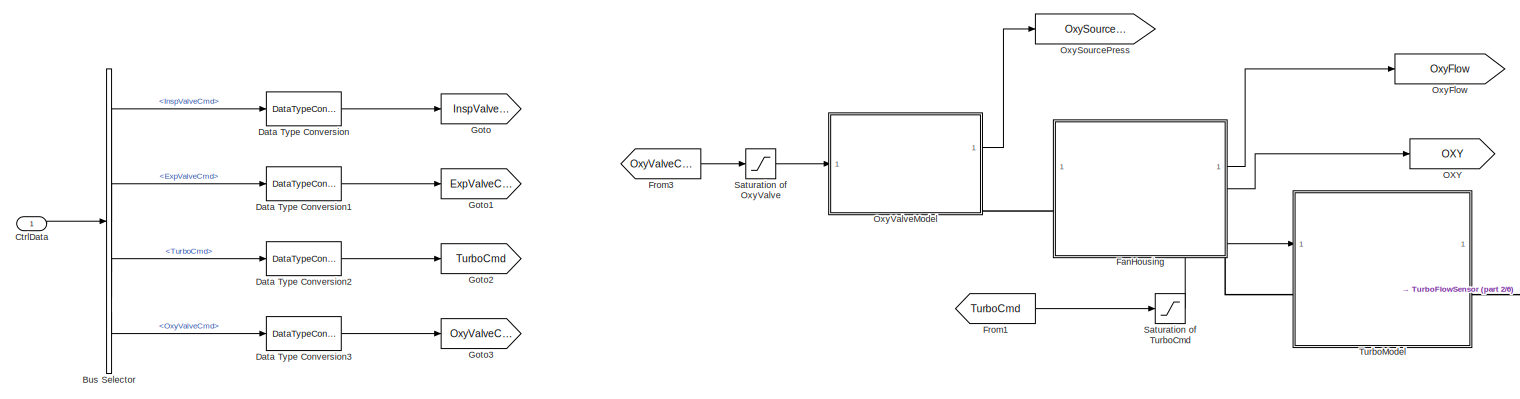
[diagram: root canvas - part 1/6, top left region]
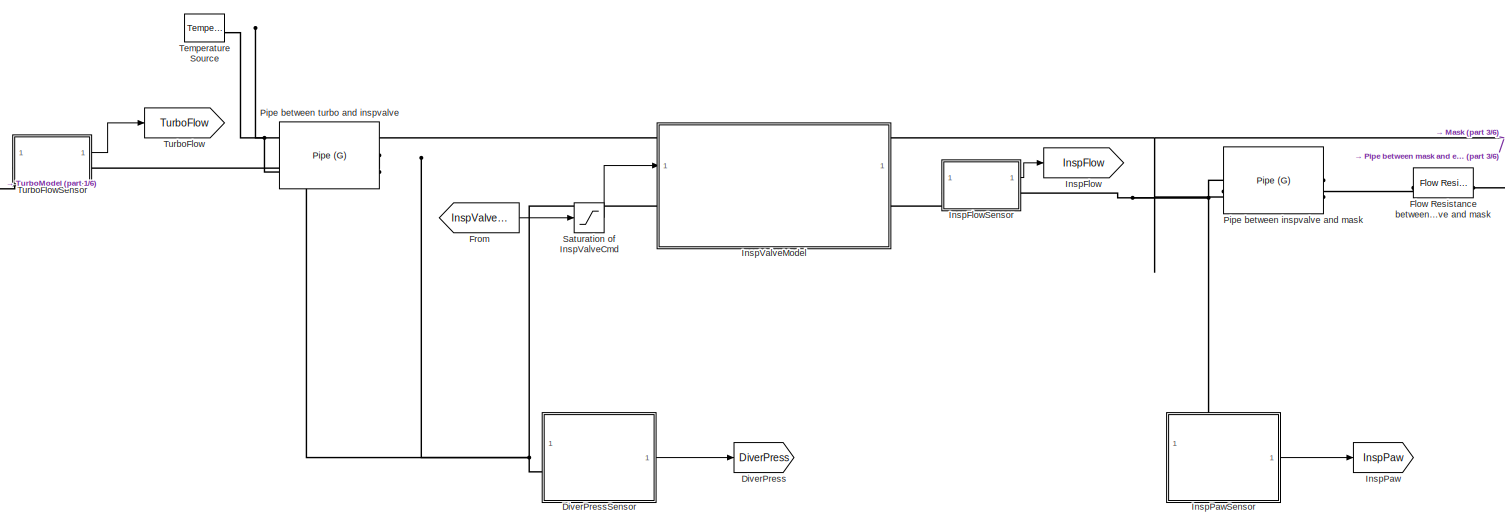
[diagram: root canvas - part 2/6, top center region]
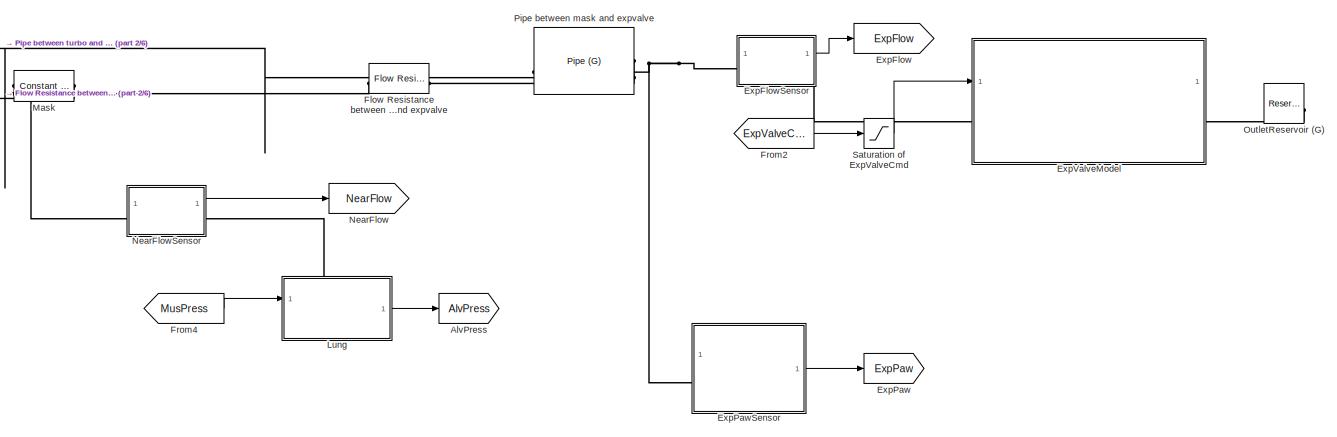
[diagram: root canvas - part 3/6, top right region]
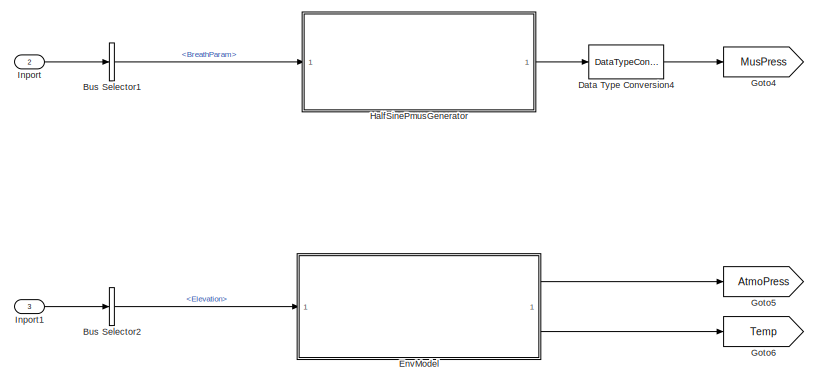
[diagram: root canvas - part 4/6, middle left region]
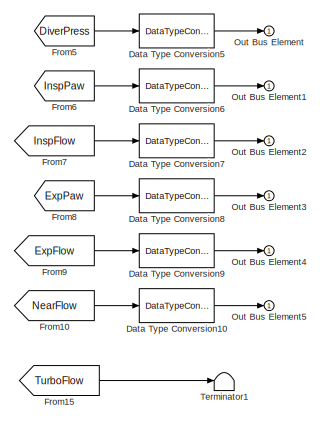
[diagram: root canvas - part 5/6, bottom right region]
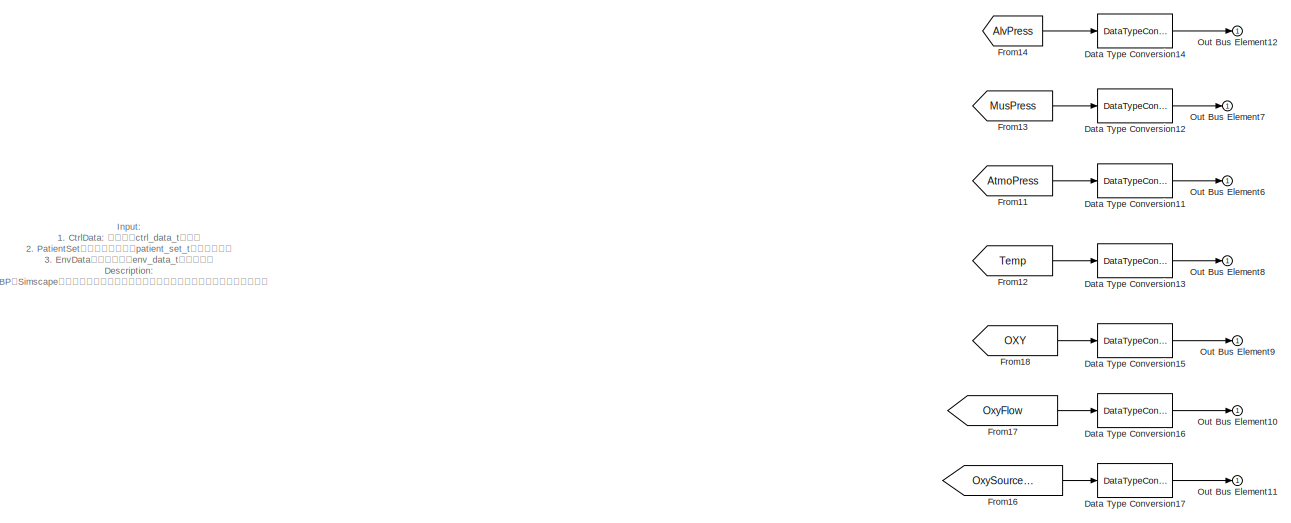
[diagram: root canvas - part 6/6, bottom center region]
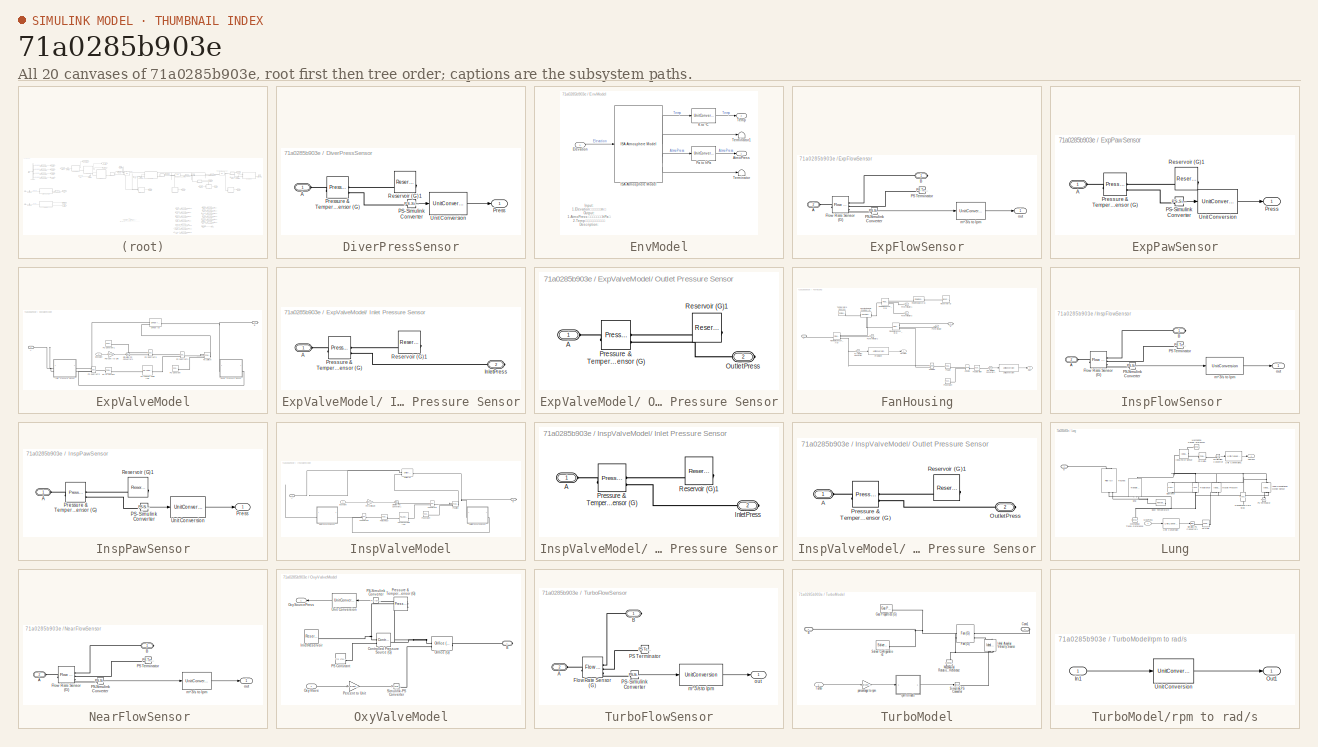
[diagram: thumbnail index - all 20 canvases of the model, root first then tree order]
MODEL slx_71a0285b903e
KIND model
CONFIG AbsTol = auto
CONFIG EnableMultiTasking = off
CONFIG FixedStep = auto
CONFIG MaxStep = auto
CONFIG MinStep = auto
CONFIG RelTol = 1e-3
CONFIG SampleTimeConstraint = Unconstrained
CONFIG SolverName = VariableStepAuto
CONFIG StartTime = 0.0
CONFIG StopTime = 10.0
WORKSPACE source: mxarray member
WORKSPACE Air_density = 1.29
WORKSPACE Body_Temperature = 37
WORKSPACE CtrlData_Max = 100
WORKSPACE CtrlData_Min = 0
WORKSPACE Detpress_to_Vavle: object (value not decoded)
WORKSPACE E_respriatory = 10
WORKSPACE ExpValve: object (value not decoded)
WORKSPACE FRC = 2
WORKSPACE Fan: object (value not decoded)
WORKSPACE FanHousing: object (value not decoded)
WORKSPACE Flow_Resistance_1: object (value not decoded)
WORKSPACE Flow_Resistance_2: object (value not decoded)
WORKSPACE Hard_Stop: Lower_bound (value not decoded)
WORKSPACE InspValve: object (value not decoded)
WORKSPACE L_to_m3 = 0.001
WORKSPACE Mask: object (value not decoded)
WORKSPACE OxyValve: object (value not decoded)
WORKSPACE OxygenSensor: object (value not decoded)
WORKSPACE Pa_to_cmH2O = 0.0101974428892
WORKSPACE Percent_to_Unit = 0.01
WORKSPACE Pipe_1: object (value not decoded)
WORKSPACE Pipe_2: object (value not decoded)
WORKSPACE Pipe_3: object (value not decoded)
WORKSPACE R_respiratory = 2
WORKSPACE Reservoir: Cross_area (value not decoded)
WORKSPACE Trachea: object (value not decoded)
WORKSPACE Volume_Max = 0.9
WORKSPACE cmH2O_to_Pa = 98.0638
WORKSPACE cmH2O_to_kPa = 0.0981
WORKSPACE lung: object (value not decoded)
WORKSPACE percentage_to_rpm = 600
BLOCK [Goto] AlvPress
  GotoTag = AlvPress
BLOCK [BusSelector] Bus Selector
  OutputSignals = InspValveCmd,ExpValveCmd,TurboCmd,OxyValveCmd
BLOCK [BusSelector] Bus Selector1
  OutputSignals = BreathParam
BLOCK [BusSelector] Bus Selector2
  OutputSignals = Elevation
BLOCK [Inport] CtrlData
  OutDataTypeStr = Bus: ctrl_data_t
BLOCK [DataTypeConversion] Data Type Conversion
  OutDataTypeStr = double
  RndMeth = Floor
  SaturateOnIntegerOverflow = off
BLOCK [DataTypeConversion] Data Type Conversion1
  OutDataTypeStr = double
  RndMeth = Floor
  SaturateOnIntegerOverflow = off
BLOCK [DataTypeConversion] Data Type Conversion10
  OutDataTypeStr = single
  RndMeth = Floor
  SaturateOnIntegerOverflow = off
BLOCK [DataTypeConversion] Data Type Conversion11
  OutDataTypeStr = single
  RndMeth = Floor
  SaturateOnIntegerOverflow = off
BLOCK [DataTypeConversion] Data Type Conversion12
  OutDataTypeStr = single
  RndMeth = Floor
  SaturateOnIntegerOverflow = off
BLOCK [DataTypeConversion] Data Type Conversion13
  OutDataTypeStr = single
  RndMeth = Floor
  SaturateOnIntegerOverflow = off
BLOCK [DataTypeConversion] Data Type Conversion14
  OutDataTypeStr = single
  RndMeth = Floor
  SaturateOnIntegerOverflow = off
BLOCK [DataTypeConversion] Data Type Conversion15
  OutDataTypeStr = single
  RndMeth = Floor
  SaturateOnIntegerOverflow = off
BLOCK [DataTypeConversion] Data Type Conversion16
  OutDataTypeStr = single
  RndMeth = Floor
  SaturateOnIntegerOverflow = off
BLOCK [DataTypeConversion] Data Type Conversion17
  OutDataTypeStr = single
  RndMeth = Floor
  SaturateOnIntegerOverflow = off
BLOCK [DataTypeConversion] Data Type Conversion2
  OutDataTypeStr = double
  RndMeth = Floor
  SaturateOnIntegerOverflow = off
BLOCK [DataTypeConversion] Data Type Conversion3
  OutDataTypeStr = double
  RndMeth = Floor
  SaturateOnIntegerOverflow = off
BLOCK [DataTypeConversion] Data Type Conversion4
  OutDataTypeStr = double
  RndMeth = Floor
  SaturateOnIntegerOverflow = off
BLOCK [DataTypeConversion] Data Type Conversion5
  OutDataTypeStr = single
  RndMeth = Floor
  SaturateOnIntegerOverflow = off
BLOCK [DataTypeConversion] Data Type Conversion6
  OutDataTypeStr = single
  RndMeth = Floor
  SaturateOnIntegerOverflow = off
BLOCK [DataTypeConversion] Data Type Conversion7
  OutDataTypeStr = single
  RndMeth = Floor
  SaturateOnIntegerOverflow = off
BLOCK [DataTypeConversion] Data Type Conversion8
  OutDataTypeStr = single
  RndMeth = Floor
  SaturateOnIntegerOverflow = off
BLOCK [DataTypeConversion] Data Type Conversion9
  OutDataTypeStr = single
  RndMeth = Floor
  SaturateOnIntegerOverflow = off
BLOCK [Goto] DiverPress
  GotoTag = DiverPress
BLOCK [SubSystem] DiverPressSensor
BLOCK [PMIOPort] DiverPressSensor/A
  Side = Left
BLOCK [Reference] DiverPressSensor/PS-Simulink Converter  REF=nesl_utility/PS-Simulink
Converter
  SourceBlock = nesl_utility/PS-Simulink\nConverter
  SourceType = PS-Simulink\nConverter
BLOCK [Outport] DiverPressSensor/Press
  Unit = hPa
BLOCK [Reference] DiverPressSensor/Pressure & Temperature Sensor (G)  REF=fl_lib/Gas/Sensors/Pressure &
Temperature Sensor
(G)
  SourceBlock = fl_lib/Gas/Sensors/Pressure &\nTemperature Sensor\n(G)
  SourceType = Pressure &\nTemperature Sensor\n(G)
BLOCK [Reference] DiverPressSensor/Reservoir (G)1  REF=fl_lib/Gas/Elements/Reservoir (G)
  NameLocation = top
  SourceBlock = fl_lib/Gas/Elements/Reservoir (G)
  SourceType = Reservoir (G)
BLOCK [UnitConversion] DiverPressSensor/Unit Conversion
BLOCK [SubSystem] EnvModel
  AttributesFormatString = %<Description>
  Description = 环境模型
BLOCK [Outport] EnvModel/AtmoPress
  OutDataTypeStr = single
  Unit = hPa
BLOCK [Inport] EnvModel/Elevation
  OutDataTypeStr = int16
  Unit = m
BLOCK [Reference] EnvModel/ISA Atmosphere Model  REF=aerolibatmos2/ISA Atmosphere Model
  SourceBlock = aerolibatmos2/ISA Atmosphere Model
  SourceType = International Standard Atmosphere Model
BLOCK [UnitConversion] EnvModel/K to °C
  OutputType = Inherit: Inherit via back propagation
BLOCK [UnitConversion] EnvModel/Pa to hPa
  OutputType = Inherit: Inherit via back propagation
BLOCK [Outport] EnvModel/Temp
  OutDataTypeStr = single
  Port = 2
  Unit = °C
BLOCK [Terminator] EnvModel/Terminator
BLOCK [Terminator] EnvModel/Terminator1
BLOCK [Goto] ExpFlow
  GotoTag = ExpFlow
BLOCK [SubSystem] ExpFlowSensor
BLOCK [PMIOPort] ExpFlowSensor/A
  Port = 2
  Side = Left
BLOCK [PMIOPort] ExpFlowSensor/B
  Side = Right
BLOCK [Reference] ExpFlowSensor/Flow Rate Sensor (G)  REF=fl_lib/Gas/Sensors/Flow Rate Sensor (G)
  SourceBlock = fl_lib/Gas/Sensors/Flow Rate Sensor (G)
  SourceType = Flow Rate Sensor (G)
BLOCK [Reference] ExpFlowSensor/PS Terminator  REF=fl_lib/Physical Signals/Sinks/PS Terminator
  SourceBlock = fl_lib/Physical Signals/Sinks/PS Terminator
  SourceType = PS Terminator
BLOCK [Reference] ExpFlowSensor/PS-Simulink Converter  REF=nesl_utility/PS-Simulink
Converter
  SourceBlock = nesl_utility/PS-Simulink\nConverter
  SourceType = PS-Simulink\nConverter
BLOCK [UnitConversion] ExpFlowSensor/m^3//s to lpm
BLOCK [Outport] ExpFlowSensor/out
  Unit = lpm
BLOCK [Goto] ExpPaw
  GotoTag = ExpPaw
BLOCK [SubSystem] ExpPawSensor
BLOCK [PMIOPort] ExpPawSensor/A
  Side = Left
BLOCK [Reference] ExpPawSensor/PS-Simulink Converter  REF=nesl_utility/PS-Simulink
Converter
  SourceBlock = nesl_utility/PS-Simulink\nConverter
  SourceType = PS-Simulink\nConverter
BLOCK [Outport] ExpPawSensor/Press
  Unit = hPa
BLOCK [Reference] ExpPawSensor/Pressure & Temperature Sensor (G)  REF=fl_lib/Gas/Sensors/Pressure &
Temperature Sensor
(G)
  SourceBlock = fl_lib/Gas/Sensors/Pressure &\nTemperature Sensor\n(G)
  SourceType = Pressure &\nTemperature Sensor\n(G)
BLOCK [Reference] ExpPawSensor/Reservoir (G)1  REF=fl_lib/Gas/Elements/Reservoir (G)
  NameLocation = top
  SourceBlock = fl_lib/Gas/Elements/Reservoir (G)
  SourceType = Reservoir (G)
BLOCK [UnitConversion] ExpPawSensor/Unit Conversion
BLOCK [SubSystem] ExpValveModel
  PortSchema = {"entries":[{"content":{"sides":[{"content":{"connectorIds":["LConn1","In1"]},"type":"ConnectorPlacement.EquallySpacedRectSide","uuid":"c1491169-4dad-48f4-8472-367eebf90c5f"},{"content":{"connectorIds":["RConn1"],"side":"RIGHT"},"type":"ConnectorPlacement.EquallySpacedRectSide","uuid":"0545f3b4-3593-4e73-91f2-3a40a520eda3"},{"content":{"side":"TOP"},"type":"ConnectorPlacement.EquallySpacedRectSide...<+233ch>  <repeated x3 — deduplicated; at blocks: ExpValveModel, InspValveModel, TurboModel>
BLOCK [SubSystem] ExpValveModel/ Inlet Pressure Sensor
BLOCK [PMIOPort] ExpValveModel/ Inlet Pressure Sensor/A
  Side = Left
BLOCK [PMIOPort] ExpValveModel/ Inlet Pressure Sensor/InletPress
  Port = 2
  Side = Right
BLOCK [Reference] ExpValveModel/ Inlet Pressure Sensor/Pressure & Temperature Sensor (G)  REF=fl_lib/Gas/Sensors/Pressure &
Temperature Sensor
(G)
  SourceBlock = fl_lib/Gas/Sensors/Pressure &\nTemperature Sensor\n(G)
  SourceType = Pressure &\nTemperature Sensor\n(G)
BLOCK [Reference] ExpValveModel/ Inlet Pressure Sensor/Reservoir (G)1  REF=fl_lib/Gas/Elements/Reservoir (G)
  NameLocation = top
  SourceBlock = fl_lib/Gas/Elements/Reservoir (G)
  SourceType = Reservoir (G)
BLOCK [SubSystem] ExpValveModel/ Outlet Pressure Sensor
BLOCK [PMIOPort] ExpValveModel/ Outlet Pressure Sensor/A
  Side = Left
BLOCK [PMIOPort] ExpValveModel/ Outlet Pressure Sensor/OutletPress
  Port = 2
  Side = Right
BLOCK [Reference] ExpValveModel/ Outlet Pressure Sensor/Pressure & Temperature Sensor (G)  REF=fl_lib/Gas/Sensors/Pressure &
Temperature Sensor
(G)
  SourceBlock = fl_lib/Gas/Sensors/Pressure &\nTemperature Sensor\n(G)
  SourceType = Pressure &\nTemperature Sensor\n(G)
BLOCK [Reference] ExpValveModel/ Outlet Pressure Sensor/Reservoir (G)1  REF=fl_lib/Gas/Elements/Reservoir (G)
  NameLocation = top
  SourceBlock = fl_lib/Gas/Elements/Reservoir (G)
  SourceType = Reservoir (G)
BLOCK [PMIOPort] ExpValveModel/A
  Side = Left
BLOCK [PMIOPort] ExpValveModel/B
  NameLocation = top
  Port = 2
  Side = Right
BLOCK [Inport] ExpValveModel/ExpValve
BLOCK [Reference] ExpValveModel/Orifice (G)  REF=SimscapeFluids_lib/Gas/Valves & Orifices/Orifice (G)
  SourceBlock = SimscapeFluids_lib/Gas/Valves & Orifices/Orifice (G)
  SourceType = Orifice (G)
BLOCK [Reference] ExpValveModel/PS Constant  REF=fl_lib/Physical Signals/Sources/PS Constant
  SourceBlock = fl_lib/Physical Signals/Sources/PS Constant
  SourceType = PS Constant
BLOCK [Reference] ExpValveModel/PS Constant1  REF=fl_lib/Physical Signals/Sources/PS Constant
  SourceBlock = fl_lib/Physical Signals/Sources/PS Constant
  SourceType = PS Constant
BLOCK [Reference] ExpValveModel/PS Lookup Table (1D)  REF=fl_lib/Physical Signals/Lookup Tables/PS Lookup Table (1D)
  SourceBlock = fl_lib/Physical Signals/Lookup Tables/PS Lookup Table (1D)
  SourceType = PS Lookup Table (1D)
BLOCK [Reference] ExpValveModel/PS Subtract1  REF=fl_lib/Physical Signals/Functions/PS Subtract
  SourceBlock = fl_lib/Physical Signals/Functions/PS Subtract
  SourceType = PS Subtract
BLOCK [Reference] ExpValveModel/PS Subtract2  REF=fl_lib/Physical Signals/Functions/PS Subtract
  SourceBlock = fl_lib/Physical Signals/Functions/PS Subtract
  SourceType = PS Subtract
BLOCK [Reference] ExpValveModel/PS Subtract3  REF=fl_lib/Physical Signals/Functions/PS Subtract
  SourceBlock = fl_lib/Physical Signals/Functions/PS Subtract
  SourceType = PS Subtract
BLOCK [Reference] ExpValveModel/PS Switch  REF=fl_lib/Physical Signals/Nonlinear Operators/PS Switch
  SourceBlock = fl_lib/Physical Signals/Nonlinear Operators/PS Switch
  SourceType = PS Switch
BLOCK [Reference] ExpValveModel/Pa to cmH2O  REF=fl_lib/Physical Signals/Functions/PS Gain
  SourceBlock = fl_lib/Physical Signals/Functions/PS Gain
  SourceType = PS Gain
BLOCK [Gain] ExpValveModel/Percent to Unit
  Gain = Percent_to_Unit
BLOCK [Reference] ExpValveModel/Simulink-PS Converter1  REF=nesl_utility/Simulink-PS
Converter
  SourceBlock = nesl_utility/Simulink-PS\nConverter
  SourceType = Simulink-PS\nConverter
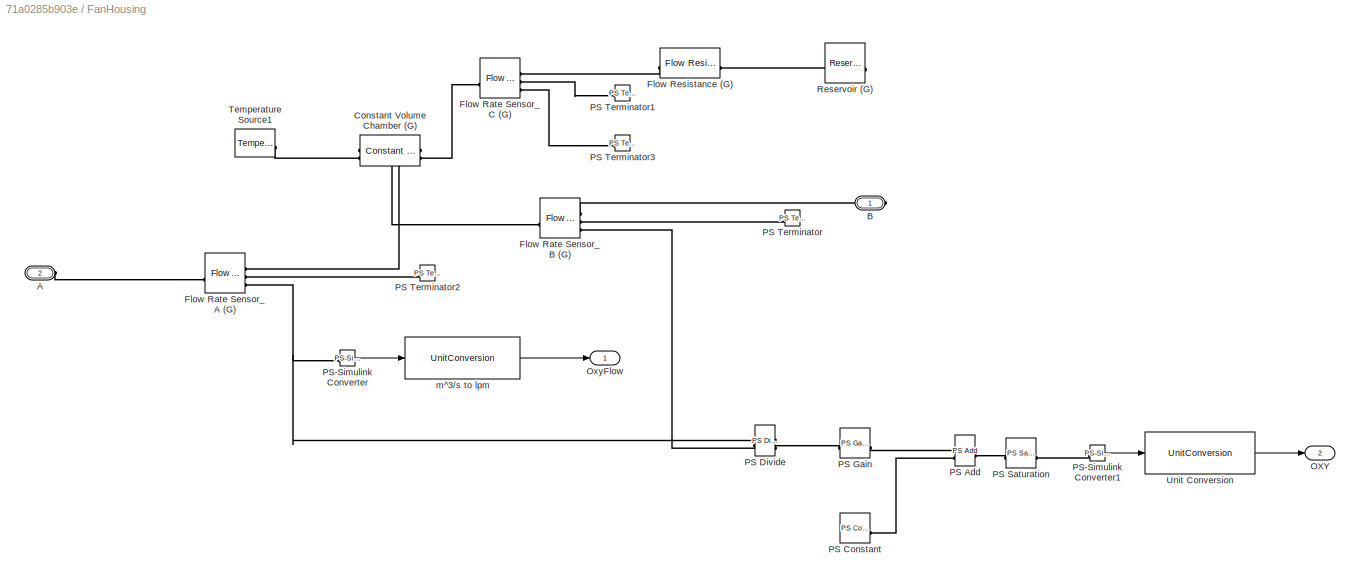
BLOCK [SubSystem] FanHousing
BLOCK [PMIOPort] FanHousing/A
  Port = 2
  Side = Left
BLOCK [PMIOPort] FanHousing/B
  Side = Right
BLOCK [Reference] FanHousing/Constant Volume Chamber (G)  REF=fl_lib/Gas/Elements/Constant Volume
Chamber (G)
  NameLocation = top
  SourceBlock = fl_lib/Gas/Elements/Constant Volume\nChamber (G)
  SourceType = Constant Volume\nChamber (G)
BLOCK [Reference] FanHousing/Flow Rate Sensor_A (G)  REF=fl_lib/Gas/Sensors/Flow Rate Sensor (G)
  SourceBlock = fl_lib/Gas/Sensors/Flow Rate Sensor (G)
  SourceType = Flow Rate Sensor (G)
BLOCK [Reference] FanHousing/Flow Rate Sensor_B (G)  REF=fl_lib/Gas/Sensors/Flow Rate Sensor (G)
  SourceBlock = fl_lib/Gas/Sensors/Flow Rate Sensor (G)
  SourceType = Flow Rate Sensor (G)
BLOCK [Reference] FanHousing/Flow Rate Sensor_C (G)  REF=fl_lib/Gas/Sensors/Flow Rate Sensor (G)
  SourceBlock = fl_lib/Gas/Sensors/Flow Rate Sensor (G)
  SourceType = Flow Rate Sensor (G)
BLOCK [Reference] FanHousing/Flow Resistance (G)  REF=fl_lib/Gas/Elements/Flow Resistance (G)
  SourceBlock = fl_lib/Gas/Elements/Flow Resistance (G)
  SourceType = Flow Resistance (G)
BLOCK [Outport] FanHousing/OXY
  Port = 2
  Unit = %
BLOCK [Outport] FanHousing/OxyFlow
  Unit = lpm
BLOCK [Reference] FanHousing/PS Add  REF=fl_lib/Physical Signals/Functions/PS Add
  SourceBlock = fl_lib/Physical Signals/Functions/PS Add
  SourceType = PS Add
BLOCK [Reference] FanHousing/PS Constant  REF=fl_lib/Physical Signals/Sources/PS Constant
  SourceBlock = fl_lib/Physical Signals/Sources/PS Constant
  SourceType = PS Constant
BLOCK [Reference] FanHousing/PS Divide  REF=fl_lib/Physical Signals/Functions/PS Divide
  SourceBlock = fl_lib/Physical Signals/Functions/PS Divide
  SourceType = PS Divide
BLOCK [Reference] FanHousing/PS Gain  REF=fl_lib/Physical Signals/Functions/PS Gain
  SourceBlock = fl_lib/Physical Signals/Functions/PS Gain
  SourceType = PS Gain
BLOCK [Reference] FanHousing/PS Saturation  REF=fl_lib/Physical Signals/Nonlinear Operators/PS Saturation
  SourceBlock = fl_lib/Physical Signals/Nonlinear Operators/PS Saturation
  SourceType = PS Saturation
BLOCK [Reference] FanHousing/PS Terminator  REF=fl_lib/Physical Signals/Sinks/PS Terminator
  SourceBlock = fl_lib/Physical Signals/Sinks/PS Terminator
  SourceType = PS Terminator
BLOCK [Reference] FanHousing/PS Terminator1  REF=fl_lib/Physical Signals/Sinks/PS Terminator
  SourceBlock = fl_lib/Physical Signals/Sinks/PS Terminator
  SourceType = PS Terminator
BLOCK [Reference] FanHousing/PS Terminator2  REF=fl_lib/Physical Signals/Sinks/PS Terminator
  SourceBlock = fl_lib/Physical Signals/Sinks/PS Terminator
  SourceType = PS Terminator
BLOCK [Reference] FanHousing/PS Terminator3  REF=fl_lib/Physical Signals/Sinks/PS Terminator
  SourceBlock = fl_lib/Physical Signals/Sinks/PS Terminator
  SourceType = PS Terminator
BLOCK [Reference] FanHousing/PS-Simulink Converter  REF=nesl_utility/PS-Simulink
Converter
  SourceBlock = nesl_utility/PS-Simulink\nConverter
  SourceType = PS-Simulink\nConverter
BLOCK [Reference] FanHousing/PS-Simulink Converter1  REF=nesl_utility/PS-Simulink
Converter
  SourceBlock = nesl_utility/PS-Simulink\nConverter
  SourceType = PS-Simulink\nConverter
BLOCK [Reference] FanHousing/Reservoir (G)  REF=fl_lib/Gas/Elements/Reservoir (G)
  NameLocation = top
  SourceBlock = fl_lib/Gas/Elements/Reservoir (G)
  SourceType = Reservoir (G)
BLOCK [Reference] FanHousing/Temperature Source1  REF=fl_lib/Thermal/Thermal Sources/Temperature Source
  SourceBlock = fl_lib/Thermal/Thermal Sources/Temperature Source
  SourceType = Temperature Source
BLOCK [UnitConversion] FanHousing/Unit Conversion
BLOCK [UnitConversion] FanHousing/m^3//s to lpm
BLOCK [Reference] Flow Resistance between inspvalve and mask  REF=fl_lib/Gas/Elements/Flow Resistance (G)
  SourceBlock = fl_lib/Gas/Elements/Flow Resistance (G)
  SourceType = Flow Resistance (G)
BLOCK [Reference] Flow Resistance between mask and expvalve  REF=fl_lib/Gas/Elements/Flow Resistance (G)
  SourceBlock = fl_lib/Gas/Elements/Flow Resistance (G)
  SourceType = Flow Resistance (G)
BLOCK [From] From
  GotoTag = InspValveCmd
BLOCK [From] From1
  GotoTag = TurboCmd
BLOCK [From] From10
  GotoTag = NearFlow
BLOCK [From] From11
  GotoTag = AtmoPress
BLOCK [From] From12
  GotoTag = Temp
BLOCK [From] From13
  GotoTag = MusPress
BLOCK [From] From14
  GotoTag = AlvPress
BLOCK [From] From15
  GotoTag = TurboFlow
BLOCK [From] From16
  GotoTag = OxySourcePress
BLOCK [From] From17
  GotoTag = OxyFlow
BLOCK [From] From18
  GotoTag = OXY
BLOCK [From] From2
  GotoTag = ExpValveCmd
BLOCK [From] From3
  GotoTag = OxyValveCmd
BLOCK [From] From4
  GotoTag = MusPress
BLOCK [From] From5
  GotoTag = DiverPress
BLOCK [From] From6
  GotoTag = InspPaw
BLOCK [From] From7
  GotoTag = InspFlow
BLOCK [From] From8
  GotoTag = ExpPaw
BLOCK [From] From9
  GotoTag = ExpFlow
BLOCK [Goto] Goto
  GotoTag = InspValveCmd
BLOCK [Goto] Goto1
  GotoTag = ExpValveCmd
BLOCK [Goto] Goto2
  GotoTag = TurboCmd
BLOCK [Goto] Goto3
  GotoTag = OxyValveCmd
BLOCK [Goto] Goto4
  GotoTag = MusPress
BLOCK [Goto] Goto5
  GotoTag = AtmoPress
BLOCK [Goto] Goto6
  GotoTag = Temp
BLOCK [ModelReference] HalfSinePmusGenerator
  ModelNameDialog = HalfSinePmusGenerator.slx
  ModelReferenceVersion = 1.36
BLOCK [Inport] Inport
  OutDataTypeStr = Bus: patient_set_t
  Port = 2
BLOCK [Inport] Inport1
  OutDataTypeStr = Bus: env_data_t
  Port = 3
BLOCK [Goto] InspFlow
  GotoTag = InspFlow
BLOCK [SubSystem] InspFlowSensor 
BLOCK [PMIOPort] InspFlowSensor /A
  Port = 2
  Side = Left
BLOCK [PMIOPort] InspFlowSensor /B
  Side = Right
BLOCK [Reference] InspFlowSensor /Flow Rate Sensor (G)  REF=fl_lib/Gas/Sensors/Flow Rate Sensor (G)
  SourceBlock = fl_lib/Gas/Sensors/Flow Rate Sensor (G)
  SourceType = Flow Rate Sensor (G)
BLOCK [Reference] InspFlowSensor /PS Terminator  REF=fl_lib/Physical Signals/Sinks/PS Terminator
  SourceBlock = fl_lib/Physical Signals/Sinks/PS Terminator
  SourceType = PS Terminator
BLOCK [Reference] InspFlowSensor /PS-Simulink Converter  REF=nesl_utility/PS-Simulink
Converter
  SourceBlock = nesl_utility/PS-Simulink\nConverter
  SourceType = PS-Simulink\nConverter
BLOCK [UnitConversion] InspFlowSensor /m^3//s to lpm
BLOCK [Outport] InspFlowSensor /out
  Unit = lpm
BLOCK [Goto] InspPaw
  GotoTag = InspPaw
BLOCK [SubSystem] InspPawSensor
BLOCK [PMIOPort] InspPawSensor/A
  Side = Left
BLOCK [Reference] InspPawSensor/PS-Simulink Converter  REF=nesl_utility/PS-Simulink
Converter
  SourceBlock = nesl_utility/PS-Simulink\nConverter
  SourceType = PS-Simulink\nConverter
BLOCK [Outport] InspPawSensor/Press
  Unit = hPa
BLOCK [Reference] InspPawSensor/Pressure & Temperature Sensor (G)  REF=fl_lib/Gas/Sensors/Pressure &
Temperature Sensor
(G)
  SourceBlock = fl_lib/Gas/Sensors/Pressure &\nTemperature Sensor\n(G)
  SourceType = Pressure &\nTemperature Sensor\n(G)
BLOCK [Reference] InspPawSensor/Reservoir (G)1  REF=fl_lib/Gas/Elements/Reservoir (G)
  NameLocation = top
  SourceBlock = fl_lib/Gas/Elements/Reservoir (G)
  SourceType = Reservoir (G)
BLOCK [UnitConversion] InspPawSensor/Unit Conversion
BLOCK [SubSystem] InspValveModel
BLOCK [SubSystem] InspValveModel/ Inlet Pressure Sensor
BLOCK [PMIOPort] InspValveModel/ Inlet Pressure Sensor/A
  Side = Left
BLOCK [PMIOPort] InspValveModel/ Inlet Pressure Sensor/InletPress
  Port = 2
  Side = Right
BLOCK [Reference] InspValveModel/ Inlet Pressure Sensor/Pressure & Temperature Sensor (G)  REF=fl_lib/Gas/Sensors/Pressure &
Temperature Sensor
(G)
  SourceBlock = fl_lib/Gas/Sensors/Pressure &\nTemperature Sensor\n(G)
  SourceType = Pressure &\nTemperature Sensor\n(G)
BLOCK [Reference] InspValveModel/ Inlet Pressure Sensor/Reservoir (G)1  REF=fl_lib/Gas/Elements/Reservoir (G)
  NameLocation = top
  SourceBlock = fl_lib/Gas/Elements/Reservoir (G)
  SourceType = Reservoir (G)
BLOCK [SubSystem] InspValveModel/ Outlet Pressure Sensor
BLOCK [PMIOPort] InspValveModel/ Outlet Pressure Sensor/A
  Side = Left
BLOCK [PMIOPort] InspValveModel/ Outlet Pressure Sensor/OutletPress
  Port = 2
  Side = Right
BLOCK [Reference] InspValveModel/ Outlet Pressure Sensor/Pressure & Temperature Sensor (G)  REF=fl_lib/Gas/Sensors/Pressure &
Temperature Sensor
(G)
  SourceBlock = fl_lib/Gas/Sensors/Pressure &\nTemperature Sensor\n(G)
  SourceType = Pressure &\nTemperature Sensor\n(G)
BLOCK [Reference] InspValveModel/ Outlet Pressure Sensor/Reservoir (G)1  REF=fl_lib/Gas/Elements/Reservoir (G)
  NameLocation = top
  SourceBlock = fl_lib/Gas/Elements/Reservoir (G)
  SourceType = Reservoir (G)
BLOCK [PMIOPort] InspValveModel/A
  Side = Left
BLOCK [PMIOPort] InspValveModel/B
  Port = 2
  Side = Right
BLOCK [Inport] InspValveModel/InspValve
BLOCK [Reference] InspValveModel/Orifice (G)  REF=SimscapeFluids_lib/Gas/Valves & Orifices/Orifice (G)
  SourceBlock = SimscapeFluids_lib/Gas/Valves & Orifices/Orifice (G)
  SourceType = Orifice (G)
BLOCK [Reference] InspValveModel/PS Constant  REF=fl_lib/Physical Signals/Sources/PS Constant
  SourceBlock = fl_lib/Physical Signals/Sources/PS Constant
  SourceType = PS Constant
BLOCK [Reference] InspValveModel/PS Lookup Table (1D)  REF=fl_lib/Physical Signals/Lookup Tables/PS Lookup Table (1D)
  SourceBlock = fl_lib/Physical Signals/Lookup Tables/PS Lookup Table (1D)
  SourceType = PS Lookup Table (1D)
BLOCK [Reference] InspValveModel/PS Subtract1  REF=fl_lib/Physical Signals/Functions/PS Subtract
  SourceBlock = fl_lib/Physical Signals/Functions/PS Subtract
  SourceType = PS Subtract
BLOCK [Reference] InspValveModel/PS Subtract2  REF=fl_lib/Physical Signals/Functions/PS Subtract
  SourceBlock = fl_lib/Physical Signals/Functions/PS Subtract
  SourceType = PS Subtract
BLOCK [Reference] InspValveModel/PS Switch  REF=fl_lib/Physical Signals/Nonlinear Operators/PS Switch
  SourceBlock = fl_lib/Physical Signals/Nonlinear Operators/PS Switch
  SourceType = PS Switch
BLOCK [Reference] InspValveModel/Pa to cmH2O  REF=fl_lib/Physical Signals/Functions/PS Gain
  SourceBlock = fl_lib/Physical Signals/Functions/PS Gain
  SourceType = PS Gain
BLOCK [Gain] InspValveModel/Percent to Unit
  Gain = Percent_to_Unit
BLOCK [Reference] InspValveModel/Simulink-PS Converter1  REF=nesl_utility/Simulink-PS
Converter
  SourceBlock = nesl_utility/Simulink-PS\nConverter
  SourceType = Simulink-PS\nConverter
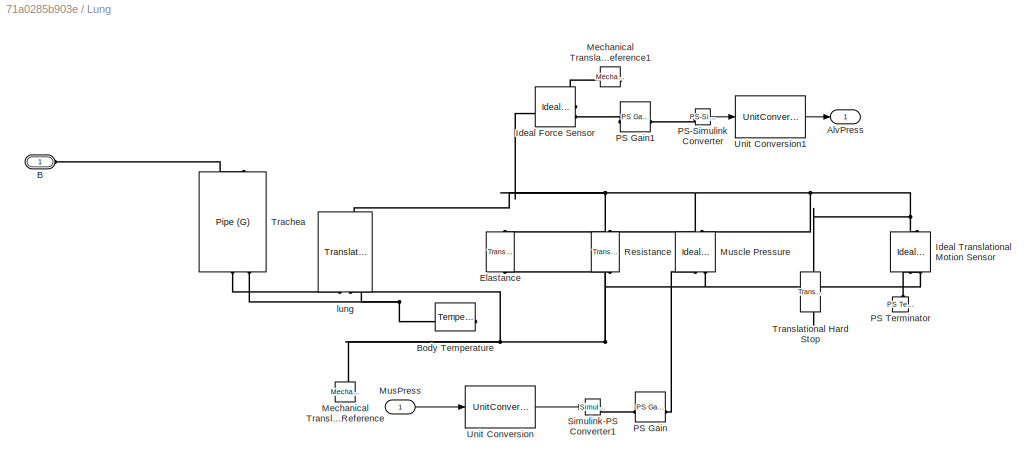
BLOCK [SubSystem] Lung
  PortSchema = {"entries":[{"content":{"sides":[{"content":{"connectorIds":["In1"]},"type":"ConnectorPlacement.EquallySpacedRectSide","uuid":"62194df3-39be-42c9-91e0-55317383e8ff"},{"content":{"connectorIds":["Out1"],"side":"RIGHT"},"type":"ConnectorPlacement.EquallySpacedRectSide","uuid":"0a91156d-be32-4862-8ff5-ef7fbd9fceb6"},{"content":{"connectorIds":["LConn1"],"side":"TOP"},"type":"ConnectorPlacement.Equall...<+248ch>
BLOCK [Outport] Lung/AlvPress
  Unit = hPa
BLOCK [PMIOPort] Lung/B
  Side = Left
BLOCK [Reference] Lung/Body Temperature  REF=fl_lib/Thermal/Thermal Sources/Temperature Source
  NameLocation = top
  SourceBlock = fl_lib/Thermal/Thermal Sources/Temperature Source
  SourceType = Temperature Source
BLOCK [Reference] Lung/Elastance  REF=fl_lib/Mechanical/Translational
Elements/Translational Spring
  NameLocation = left
  SourceBlock = fl_lib/Mechanical/Translational\nElements/Translational Spring
  SourceType = Translational Spring
BLOCK [Reference] Lung/Ideal Force Sensor  REF=fl_lib/Mechanical/Mechanical Sensors/Ideal Force Sensor
  SourceBlock = fl_lib/Mechanical/Mechanical Sensors/Ideal Force Sensor
  SourceType = Ideal Force Sensor
BLOCK [Reference] Lung/Ideal Translational Motion Sensor  REF=fl_lib/Mechanical/Mechanical Sensors/Ideal Translational
Motion Sensor
  NameLocation = left
  SourceBlock = fl_lib/Mechanical/Mechanical Sensors/Ideal Translational\nMotion Sensor
  SourceType = Ideal Translational\nMotion Sensor
BLOCK [Reference] Lung/Mechanical Translational Reference  REF=fl_lib/Mechanical/Translational
Elements/Mechanical
Translational
Reference
  NameLocation = right
  SourceBlock = fl_lib/Mechanical/Translational\nElements/Mechanical\nTranslational\nReference
  SourceType = Mechanical\nTranslational\nReference
BLOCK [Reference] Lung/Mechanical Translational Reference1  REF=fl_lib/Mechanical/Translational
Elements/Mechanical
Translational
Reference
  NameLocation = top
  SourceBlock = fl_lib/Mechanical/Translational\nElements/Mechanical\nTranslational\nReference
  SourceType = Mechanical\nTranslational\nReference
BLOCK [Inport] Lung/MusPress
  Unit = hPa
BLOCK [Reference] Lung/Muscle Pressure  REF=fl_lib/Mechanical/Mechanical Sources/Ideal Force Source
  NameLocation = right
  SourceBlock = fl_lib/Mechanical/Mechanical Sources/Ideal Force Source
  SourceType = Ideal Force Source
BLOCK [Reference] Lung/PS Gain  REF=fl_lib/Physical Signals/Functions/PS Gain
  SourceBlock = fl_lib/Physical Signals/Functions/PS Gain
  SourceType = PS Gain
BLOCK [Reference] Lung/PS Gain1  REF=fl_lib/Physical Signals/Functions/PS Gain
  SourceBlock = fl_lib/Physical Signals/Functions/PS Gain
  SourceType = PS Gain
BLOCK [Reference] Lung/PS Terminator  REF=fl_lib/Physical Signals/Sinks/PS Terminator
  NameLocation = left
  SourceBlock = fl_lib/Physical Signals/Sinks/PS Terminator
  SourceType = PS Terminator
BLOCK [Reference] Lung/PS-Simulink Converter  REF=nesl_utility/PS-Simulink
Converter
  SourceBlock = nesl_utility/PS-Simulink\nConverter
  SourceType = PS-Simulink\nConverter
BLOCK [Reference] Lung/Resistance  REF=fl_lib/Mechanical/Translational
Elements/Translational Damper
  NameLocation = left
  SourceBlock = fl_lib/Mechanical/Translational\nElements/Translational Damper
  SourceType = Translational Damper
BLOCK [Reference] Lung/Simulink-PS Converter1  REF=nesl_utility/Simulink-PS
Converter
  SourceBlock = nesl_utility/Simulink-PS\nConverter
  SourceType = Simulink-PS\nConverter
BLOCK [Reference] Lung/Trachea  REF=fl_lib/Gas/Elements/Pipe (G)
  NameLocation = right
  SourceBlock = fl_lib/Gas/Elements/Pipe (G)
  SourceType = Pipe (G)
BLOCK [Reference] Lung/Translational Hard Stop  REF=fl_lib/Mechanical/Translational
Elements/Translational Hard
Stop
  NameLocation = left
  SourceBlock = fl_lib/Mechanical/Translational\nElements/Translational Hard\nStop
  SourceType = Translational Hard\nStop
BLOCK [UnitConversion] Lung/Unit Conversion
BLOCK [UnitConversion] Lung/Unit Conversion1
BLOCK [Reference] Lung/lung  REF=fl_lib/Gas/Elements/Translational
Mechanical Converter
(G)
  NameLocation = right
  SourceBlock = fl_lib/Gas/Elements/Translational\nMechanical Converter\n(G)
  SourceType = Translational\nMechanical Converter\n(G)
BLOCK [Reference] Mask  REF=fl_lib/Gas/Elements/Constant Volume
Chamber (G)
  SourceBlock = fl_lib/Gas/Elements/Constant Volume\nChamber (G)
  SourceType = Constant Volume\nChamber (G)
BLOCK [Goto] NearFlow
  GotoTag = NearFlow
BLOCK [SubSystem] NearFlowSensor 
BLOCK [PMIOPort] NearFlowSensor /A
  Port = 2
  Side = Left
BLOCK [PMIOPort] NearFlowSensor /B
  Side = Right
BLOCK [Reference] NearFlowSensor /Flow Rate Sensor (G)  REF=fl_lib/Gas/Sensors/Flow Rate Sensor (G)
  SourceBlock = fl_lib/Gas/Sensors/Flow Rate Sensor (G)
  SourceType = Flow Rate Sensor (G)
BLOCK [Reference] NearFlowSensor /PS Terminator  REF=fl_lib/Physical Signals/Sinks/PS Terminator
  SourceBlock = fl_lib/Physical Signals/Sinks/PS Terminator
  SourceType = PS Terminator
BLOCK [Reference] NearFlowSensor /PS-Simulink Converter  REF=nesl_utility/PS-Simulink
Converter
  SourceBlock = nesl_utility/PS-Simulink\nConverter
  SourceType = PS-Simulink\nConverter
BLOCK [UnitConversion] NearFlowSensor /m^3//s to lpm
BLOCK [Outport] NearFlowSensor /out
  Unit = lpm
BLOCK [Goto] OXY
  GotoTag = OXY
BLOCK [Outport] Out Bus Element
BLOCK [Outport] Out Bus Element1
BLOCK [Outport] Out Bus Element10
BLOCK [Outport] Out Bus Element11
BLOCK [Outport] Out Bus Element12
BLOCK [Outport] Out Bus Element2
BLOCK [Outport] Out Bus Element3
BLOCK [Outport] Out Bus Element4
BLOCK [Outport] Out Bus Element5
BLOCK [Outport] Out Bus Element6
BLOCK [Outport] Out Bus Element7
BLOCK [Outport] Out Bus Element8
BLOCK [Outport] Out Bus Element9
BLOCK [Reference] OutletReservoir (G)  REF=fl_lib/Gas/Elements/Reservoir (G)
  SourceBlock = fl_lib/Gas/Elements/Reservoir (G)
  SourceType = Reservoir (G)
BLOCK [Goto] OxyFlow
  GotoTag = OxyFlow
BLOCK [Goto] OxySourcePress
  GotoTag = OxySourcePress
BLOCK [SubSystem] OxyValveModel
BLOCK [PMIOPort] OxyValveModel/B
  Side = Right
BLOCK [Reference] OxyValveModel/Controlled Pressure Source (G)  REF=fl_lib/Gas/Sources/Controlled Pressure
Source (G)
  SourceBlock = fl_lib/Gas/Sources/Controlled Pressure\nSource (G)
  SourceType = Controlled Pressure\nSource (G)
BLOCK [Reference] OxyValveModel/InletReservoir  REF=fl_lib/Gas/Elements/Reservoir (G)
  SourceBlock = fl_lib/Gas/Elements/Reservoir (G)
  SourceType = Reservoir (G)
BLOCK [Reference] OxyValveModel/Orifice (G)  REF=SimscapeFluids_lib/Gas/Valves & Orifices/Orifice (G)
  SourceBlock = SimscapeFluids_lib/Gas/Valves & Orifices/Orifice (G)
  SourceType = Orifice (G)
BLOCK [Outport] OxyValveModel/OxySourcePress
  NameLocation = top
  Unit = hPa
BLOCK [Inport] OxyValveModel/OxyVlave
BLOCK [Reference] OxyValveModel/PS Constant  REF=fl_lib/Physical Signals/Sources/PS Constant
  SourceBlock = fl_lib/Physical Signals/Sources/PS Constant
  SourceType = PS Constant
BLOCK [Reference] OxyValveModel/PS-Simulink Converter  REF=nesl_utility/PS-Simulink
Converter
  NameLocation = top
  SourceBlock = nesl_utility/PS-Simulink\nConverter
  SourceType = PS-Simulink\nConverter
BLOCK [Gain] OxyValveModel/Percent to Unit
  Gain = Percent_to_Unit
BLOCK [Reference] OxyValveModel/Pressure & Temperature Sensor (G)  REF=fl_lib/Gas/Sensors/Pressure &
Temperature Sensor
(G)
  NameLocation = top
  SourceBlock = fl_lib/Gas/Sensors/Pressure &\nTemperature Sensor\n(G)
  SourceType = Pressure &\nTemperature Sensor\n(G)
BLOCK [Reference] OxyValveModel/Simulink-PS Converter  REF=nesl_utility/Simulink-PS
Converter
  SourceBlock = nesl_utility/Simulink-PS\nConverter
  SourceType = Simulink-PS\nConverter
BLOCK [UnitConversion] OxyValveModel/Unit Conversion
  NameLocation = top
BLOCK [Reference] Pipe between inspvalve and mask  REF=fl_lib/Gas/Elements/Pipe (G)
  SourceBlock = fl_lib/Gas/Elements/Pipe (G)
  SourceType = Pipe (G)
BLOCK [Reference] Pipe between mask and expvalve  REF=fl_lib/Gas/Elements/Pipe (G)
  SourceBlock = fl_lib/Gas/Elements/Pipe (G)
  SourceType = Pipe (G)
BLOCK [Reference] Pipe between turbo and inspvalve  REF=fl_lib/Gas/Elements/Pipe (G)
  SourceBlock = fl_lib/Gas/Elements/Pipe (G)
  SourceType = Pipe (G)
BLOCK [Saturate] Saturation of ExpValveCmd
  LowerLimit = CtrlData_Min
  UpperLimit = CtrlData_Max
BLOCK [Saturate] Saturation of InspValveCmd
  LowerLimit = CtrlData_Min
  UpperLimit = CtrlData_Max
BLOCK [Saturate] Saturation of OxyValve
  LowerLimit = CtrlData_Min
  UpperLimit = CtrlData_Max
BLOCK [Saturate] Saturation of TurboCmd
  LowerLimit = CtrlData_Min
  UpperLimit = CtrlData_Max
BLOCK [Reference] Temperature Source  REF=fl_lib/Thermal/Thermal Sources/Temperature Source
  SourceBlock = fl_lib/Thermal/Thermal Sources/Temperature Source
  SourceType = Temperature Source
BLOCK [Terminator] Terminator1
BLOCK [Goto] TurboFlow
  GotoTag = TurboFlow
BLOCK [SubSystem] TurboFlowSensor
BLOCK [PMIOPort] TurboFlowSensor/A
  Port = 2
  Side = Left
BLOCK [PMIOPort] TurboFlowSensor/B
  Side = Right
BLOCK [Reference] TurboFlowSensor/Flow Rate Sensor (G)  REF=fl_lib/Gas/Sensors/Flow Rate Sensor (G)
  SourceBlock = fl_lib/Gas/Sensors/Flow Rate Sensor (G)
  SourceType = Flow Rate Sensor (G)
BLOCK [Reference] TurboFlowSensor/PS Terminator  REF=fl_lib/Physical Signals/Sinks/PS Terminator
  SourceBlock = fl_lib/Physical Signals/Sinks/PS Terminator
  SourceType = PS Terminator
BLOCK [Reference] TurboFlowSensor/PS-Simulink Converter  REF=nesl_utility/PS-Simulink
Converter
  SourceBlock = nesl_utility/PS-Simulink\nConverter
  SourceType = PS-Simulink\nConverter
BLOCK [UnitConversion] TurboFlowSensor/m^3//s to lpm
BLOCK [Outport] TurboFlowSensor/out
  Unit = lpm
BLOCK [SubSystem] TurboModel
BLOCK [PMIOPort] TurboModel/B
  Side = Left
BLOCK [PMIOPort] TurboModel/Conn1
  Port = 2
  Side = Right
BLOCK [Reference] TurboModel/Fan (G)  REF=SimscapeFluids_lib/Gas/Turbomachinery/Fan (G)
  SourceBlock = SimscapeFluids_lib/Gas/Turbomachinery/Fan (G)
  SourceType = Fan (G)
BLOCK [Reference] TurboModel/Gas Properties (G)  REF=fl_lib/Gas/Utilities/Gas Properties (G)
  SourceBlock = fl_lib/Gas/Utilities/Gas Properties (G)
  SourceType = Gas Properties (G)
BLOCK [Reference] TurboModel/Ideal Angular Velocity Source  REF=fl_lib/Mechanical/Mechanical Sources/Ideal Angular
Velocity Source
  NameLocation = right
  SourceBlock = fl_lib/Mechanical/Mechanical Sources/Ideal Angular\nVelocity Source
  SourceType = Ideal Angular\nVelocity Source
BLOCK [Reference] TurboModel/Mechanical Rotational Reference  REF=fl_lib/Mechanical/Rotational Elements/Mechanical
Rotational Reference
  NameLocation = right
  SourceBlock = fl_lib/Mechanical/Rotational Elements/Mechanical\nRotational Reference
  SourceType = Mechanical\nRotational Reference
BLOCK [Reference] TurboModel/Simulink-PS Converter  REF=nesl_utility/Simulink-PS
Converter
  SourceBlock = nesl_utility/Simulink-PS\nConverter
  SourceType = Simulink-PS\nConverter
BLOCK [Reference] TurboModel/Solver Configuration1  REF=nesl_utility/Solver
Configuration
  SourceBlock = nesl_utility/Solver\nConfiguration
  SourceType = Solver\nConfiguration
BLOCK [Inport] TurboModel/Turbo
BLOCK [Gain] TurboModel/percentage to rpm
  Gain = percentage_to_rpm
BLOCK [SubSystem] TurboModel/rpm to rad//s
BLOCK [Inport] TurboModel/rpm to rad//s/In1
  Unit = rpm
BLOCK [Outport] TurboModel/rpm to rad//s/Out1
  Unit = rad/s
BLOCK [UnitConversion] TurboModel/rpm to rad//s/Unit Conversion
ANNOTATION (root): Input: 1. CtrlData: 控制量，ctrl_data_t类型； 2. PatientSet ：患者参数设置， patient_set_t 结构体类型 ； 3. EnvData ：环境数据， env_data_t 结构体类型 Description: NIBP的Simscape模型，暂未添加氧气阀，缺少氧气压力、氧流量、氧浓度相关结构； Output: RawSensorData : 传感器物理量，sensor_data_t结构体类型； Author: Xu Data: 2024/6/6
ANNOTATION EnvModel: Input: 1.Elevation:海拔，单位m； Output: 1.AtmoPress:大气压力，单位hPa； 2.Temp：温度，单位摄氏度； Description: NIBP呼吸机的环境模型，基于海拔值计算大气压力和环境平均温度 Author: Xu
LINE Bus Selector1:1 -> HalfSinePmusGenerator:1
LINE Bus Selector2:1 -> EnvModel:1
LINE Bus Selector:1 -> Data Type Conversion:1
LINE Bus Selector:2 -> Data Type Conversion1:1
LINE Bus Selector:3 -> Data Type Conversion2:1
LINE Bus Selector:4 -> Data Type Conversion3:1
LINE CtrlData:1 -> Bus Selector:1
LINE Data Type Conversion10:1 -> Out Bus Element5:1
LINE Data Type Conversion11:1 -> Out Bus Element6:1
LINE Data Type Conversion12:1 -> Out Bus Element7:1
LINE Data Type Conversion13:1 -> Out Bus Element8:1
LINE Data Type Conversion14:1 -> Out Bus Element12:1
LINE Data Type Conversion15:1 -> Out Bus Element9:1
LINE Data Type Conversion16:1 -> Out Bus Element10:1
LINE Data Type Conversion17:1 -> Out Bus Element11:1
LINE Data Type Conversion1:1 -> Goto1:1
LINE Data Type Conversion2:1 -> Goto2:1
LINE Data Type Conversion3:1 -> Goto3:1
LINE Data Type Conversion4:1 -> Goto4:1
LINE Data Type Conversion5:1 -> Out Bus Element:1
LINE Data Type Conversion6:1 -> Out Bus Element1:1
LINE Data Type Conversion7:1 -> Out Bus Element2:1
LINE Data Type Conversion8:1 -> Out Bus Element3:1
LINE Data Type Conversion9:1 -> Out Bus Element4:1
LINE Data Type Conversion:1 -> Goto:1
LINE DiverPressSensor/PS-Simulink Converter:1 -> DiverPressSensor/Unit Conversion:1
LINE DiverPressSensor/Unit Conversion:1 -> DiverPressSensor/Press:1
LINE DiverPressSensor:1 -> DiverPress:1
LINE EnvModel/Elevation:1 -> EnvModel/ISA Atmosphere Model:1
LINE EnvModel/ISA Atmosphere Model:1 -> EnvModel/K to °C:1
LINE EnvModel/ISA Atmosphere Model:2 -> EnvModel/Terminator1:1
LINE EnvModel/ISA Atmosphere Model:3 -> EnvModel/Pa to hPa:1
LINE EnvModel/ISA Atmosphere Model:4 -> EnvModel/Terminator:1
LINE EnvModel/K to °C:1 -> EnvModel/Temp:1
LINE EnvModel/Pa to hPa:1 -> EnvModel/AtmoPress:1
LINE EnvModel:1 -> Goto5:1
LINE EnvModel:2 -> Goto6:1
LINE ExpFlowSensor/PS-Simulink Converter:1 -> ExpFlowSensor/m^3//s to lpm:1
LINE ExpFlowSensor/m^3//s to lpm:1 -> ExpFlowSensor/out:1
LINE ExpFlowSensor:1 -> ExpFlow:1
LINE ExpPawSensor/PS-Simulink Converter:1 -> ExpPawSensor/Unit Conversion:1
LINE ExpPawSensor/Unit Conversion:1 -> ExpPawSensor/Press:1
LINE ExpPawSensor:1 -> ExpPaw:1
LINE ExpValveModel/ExpValve:1 -> ExpValveModel/Percent to Unit:1
LINE ExpValveModel/Percent to Unit:1 -> ExpValveModel/Simulink-PS Converter1:1
LINE FanHousing/PS-Simulink Converter1:1 -> FanHousing/Unit Conversion:1
LINE FanHousing/PS-Simulink Converter:1 -> FanHousing/m^3//s to lpm:1
LINE FanHousing/Unit Conversion:1 -> FanHousing/OXY:1
LINE FanHousing/m^3//s to lpm:1 -> FanHousing/OxyFlow:1
LINE FanHousing:1 -> OxyFlow:1
LINE FanHousing:2 -> OXY:1
LINE From10:1 -> Data Type Conversion10:1
LINE From11:1 -> Data Type Conversion11:1
LINE From12:1 -> Data Type Conversion13:1
LINE From13:1 -> Data Type Conversion12:1
LINE From14:1 -> Data Type Conversion14:1
LINE From15:1 -> Terminator1:1
LINE From16:1 -> Data Type Conversion17:1
LINE From17:1 -> Data Type Conversion16:1
LINE From18:1 -> Data Type Conversion15:1
LINE From1:1 -> Saturation of TurboCmd:1
LINE From2:1 -> Saturation of ExpValveCmd:1
LINE From3:1 -> Saturation of OxyValve:1
LINE From4:1 -> Lung:1
LINE From5:1 -> Data Type Conversion5:1
LINE From6:1 -> Data Type Conversion6:1
LINE From7:1 -> Data Type Conversion7:1
LINE From8:1 -> Data Type Conversion8:1
LINE From9:1 -> Data Type Conversion9:1
LINE From:1 -> Saturation of InspValveCmd:1
LINE HalfSinePmusGenerator:1 -> Data Type Conversion4:1
LINE Inport1:1 -> Bus Selector2:1
LINE Inport:1 -> Bus Selector1:1
LINE InspFlowSensor /PS-Simulink Converter:1 -> InspFlowSensor /m^3//s to lpm:1
LINE InspFlowSensor /m^3//s to lpm:1 -> InspFlowSensor /out:1
LINE InspFlowSensor :1 -> InspFlow:1
LINE InspPawSensor/PS-Simulink Converter:1 -> InspPawSensor/Unit Conversion:1
LINE InspPawSensor/Unit Conversion:1 -> InspPawSensor/Press:1
LINE InspPawSensor:1 -> InspPaw:1
LINE InspValveModel/InspValve:1 -> InspValveModel/Percent to Unit:1
LINE InspValveModel/Percent to Unit:1 -> InspValveModel/Simulink-PS Converter1:1
LINE Lung/MusPress:1 -> Lung/Unit Conversion:1
LINE Lung/PS-Simulink Converter:1 -> Lung/Unit Conversion1:1
LINE Lung/Unit Conversion1:1 -> Lung/AlvPress:1
LINE Lung/Unit Conversion:1 -> Lung/Simulink-PS Converter1:1
LINE Lung:1 -> AlvPress:1
LINE NearFlowSensor /PS-Simulink Converter:1 -> NearFlowSensor /m^3//s to lpm:1
LINE NearFlowSensor /m^3//s to lpm:1 -> NearFlowSensor /out:1
LINE NearFlowSensor :1 -> NearFlow:1
LINE OxyValveModel/OxyVlave:1 -> OxyValveModel/Percent to Unit:1
LINE OxyValveModel/PS-Simulink Converter:1 -> OxyValveModel/Unit Conversion:1
LINE OxyValveModel/Percent to Unit:1 -> OxyValveModel/Simulink-PS Converter:1
LINE OxyValveModel/Unit Conversion:1 -> OxyValveModel/OxySourcePress:1
LINE OxyValveModel:1 -> OxySourcePress:1
LINE Saturation of ExpValveCmd:1 -> ExpValveModel:1
LINE Saturation of InspValveCmd:1 -> InspValveModel:1
LINE Saturation of OxyValve:1 -> OxyValveModel:1
LINE Saturation of TurboCmd:1 -> TurboModel:1
LINE TurboFlowSensor/PS-Simulink Converter:1 -> TurboFlowSensor/m^3//s to lpm:1
LINE TurboFlowSensor/m^3//s to lpm:1 -> TurboFlowSensor/out:1
LINE TurboFlowSensor:1 -> TurboFlow:1
LINE TurboModel/Turbo:1 -> TurboModel/percentage to rpm:1
LINE TurboModel/percentage to rpm:1 -> TurboModel/rpm to rad//s:1
LINE TurboModel/rpm to rad//s/In1:1 -> TurboModel/rpm to rad//s/Unit Conversion:1
LINE TurboModel/rpm to rad//s/Unit Conversion:1 -> TurboModel/rpm to rad//s/Out1:1
LINE TurboModel/rpm to rad//s:1 -> TurboModel/Simulink-PS Converter:1
PLINE DiverPressSensor/A:RConn1 -- DiverPressSensor/Pressure & Temperature Sensor (G):LConn1
PLINE DiverPressSensor/PS-Simulink Converter:LConn1 -- DiverPressSensor/Pressure & Temperature Sensor (G):RConn2
PLINE DiverPressSensor/Pressure & Temperature Sensor (G):RConn1 -- DiverPressSensor/Reservoir (G)1:LConn1
PNET net1: DiverPressSensor:LConn1 -- InspValveModel:LConn1 -- Pipe between turbo and inspvalve:RConn1
PLINE ExpFlowSensor/A:RConn1 -- ExpFlowSensor/Flow Rate Sensor (G):LConn1
PLINE ExpFlowSensor/B:RConn1 -- ExpFlowSensor/Flow Rate Sensor (G):RConn1
PLINE ExpFlowSensor/Flow Rate Sensor (G):RConn2 -- ExpFlowSensor/PS Terminator:LConn1
PLINE ExpFlowSensor/Flow Rate Sensor (G):RConn3 -- ExpFlowSensor/PS-Simulink Converter:LConn1
PNET net2: ExpFlowSensor:LConn1 -- ExpPawSensor:LConn1 -- Pipe between mask and expvalve:RConn1
PLINE ExpFlowSensor:RConn1 -- ExpValveModel:LConn1
PLINE ExpPawSensor/A:RConn1 -- ExpPawSensor/Pressure & Temperature Sensor (G):LConn1
PLINE ExpPawSensor/PS-Simulink Converter:LConn1 -- ExpPawSensor/Pressure & Temperature Sensor (G):RConn2
PLINE ExpPawSensor/Pressure & Temperature Sensor (G):RConn1 -- ExpPawSensor/Reservoir (G)1:LConn1
PLINE ExpValveModel/ Inlet Pressure Sensor/A:RConn1 -- ExpValveModel/ Inlet Pressure Sensor/Pressure & Temperature Sensor (G):LConn1
PLINE ExpValveModel/ Inlet Pressure Sensor/InletPress:RConn1 -- ExpValveModel/ Inlet Pressure Sensor/Pressure & Temperature Sensor (G):RConn2
PLINE ExpValveModel/ Inlet Pressure Sensor/Pressure & Temperature Sensor (G):RConn1 -- ExpValveModel/ Inlet Pressure Sensor/Reservoir (G)1:LConn1
PNET net3: ExpValveModel/ Inlet Pressure Sensor:LConn1 -- ExpValveModel/A:RConn1 -- ExpValveModel/Orifice (G):LConn1
PLINE ExpValveModel/ Inlet Pressure Sensor:RConn1 -- ExpValveModel/PS Subtract2:LConn1
PLINE ExpValveModel/ Outlet Pressure Sensor/A:RConn1 -- ExpValveModel/ Outlet Pressure Sensor/Pressure & Temperature Sensor (G):LConn1
PLINE ExpValveModel/ Outlet Pressure Sensor/OutletPress:RConn1 -- ExpValveModel/ Outlet Pressure Sensor/Pressure & Temperature Sensor (G):RConn2
PLINE ExpValveModel/ Outlet Pressure Sensor/Pressure & Temperature Sensor (G):RConn1 -- ExpValveModel/ Outlet Pressure Sensor/Reservoir (G)1:LConn1
PNET net4: ExpValveModel/ Outlet Pressure Sensor:LConn1 -- ExpValveModel/B:RConn1 -- ExpValveModel/Orifice (G):RConn1
PLINE ExpValveModel/ Outlet Pressure Sensor:RConn1 -- ExpValveModel/PS Subtract2:LConn2
PLINE ExpValveModel/Orifice (G):LConn2 -- ExpValveModel/PS Switch:RConn1
PLINE ExpValveModel/PS Constant1:RConn1 -- ExpValveModel/PS Subtract3:LConn1
PLINE ExpValveModel/PS Constant:RConn1 -- ExpValveModel/PS Switch:LConn3
PLINE ExpValveModel/PS Lookup Table (1D):LConn1 -- ExpValveModel/Pa to cmH2O:RConn1
PLINE ExpValveModel/PS Lookup Table (1D):RConn1 -- ExpValveModel/PS Subtract1:LConn2
PLINE ExpValveModel/PS Subtract1:LConn1 -- ExpValveModel/PS Subtract3:RConn1
PNET net5: ExpValveModel/PS Subtract1:RConn1 -- ExpValveModel/PS Switch:LConn1 -- ExpValveModel/PS Switch:LConn2
PLINE ExpValveModel/PS Subtract2:RConn1 -- ExpValveModel/Pa to cmH2O:LConn1
PLINE ExpValveModel/PS Subtract3:LConn2 -- ExpValveModel/Simulink-PS Converter1:RConn1
PLINE ExpValveModel:RConn1 -- OutletReservoir (G):LConn1
PLINE FanHousing/A:RConn1 -- FanHousing/Flow Rate Sensor_A (G):LConn1
PLINE FanHousing/B:RConn1 -- FanHousing/Flow Rate Sensor_B (G):RConn1
PLINE FanHousing/Constant Volume Chamber (G):LConn1 -- FanHousing/Flow Rate Sensor_A (G):RConn1
PLINE FanHousing/Constant Volume Chamber (G):LConn2 -- FanHousing/Temperature Source1:LConn1
PLINE FanHousing/Constant Volume Chamber (G):RConn1 -- FanHousing/Flow Rate Sensor_B (G):LConn1
PLINE FanHousing/Constant Volume Chamber (G):RConn2 -- FanHousing/Flow Rate Sensor_C (G):LConn1
PLINE FanHousing/Flow Rate Sensor_A (G):RConn2 -- FanHousing/PS Terminator2:LConn1
PNET net6: FanHousing/Flow Rate Sensor_A (G):RConn3 -- FanHousing/PS Divide:LConn1 -- FanHousing/PS-Simulink Converter:LConn1
PLINE FanHousing/Flow Rate Sensor_B (G):RConn2 -- FanHousing/PS Terminator:LConn1
PLINE FanHousing/Flow Rate Sensor_B (G):RConn3 -- FanHousing/PS Divide:LConn2
PLINE FanHousing/Flow Rate Sensor_C (G):RConn1 -- FanHousing/Flow Resistance (G):LConn1
PLINE FanHousing/Flow Rate Sensor_C (G):RConn2 -- FanHousing/PS Terminator1:LConn1
PLINE FanHousing/Flow Rate Sensor_C (G):RConn3 -- FanHousing/PS Terminator3:LConn1
PLINE FanHousing/Flow Resistance (G):RConn1 -- FanHousing/Reservoir (G):LConn1
PLINE FanHousing/PS Add:LConn1 -- FanHousing/PS Gain:RConn1
PLINE FanHousing/PS Add:LConn2 -- FanHousing/PS Constant:RConn1
PLINE FanHousing/PS Add:RConn1 -- FanHousing/PS Saturation:LConn1
PLINE FanHousing/PS Divide:RConn1 -- FanHousing/PS Gain:LConn1
PLINE FanHousing/PS Saturation:RConn1 -- FanHousing/PS-Simulink Converter1:LConn1
PLINE FanHousing:LConn1 -- OxyValveModel:RConn1
PLINE FanHousing:RConn1 -- TurboModel:LConn1
PLINE Flow Resistance between inspvalve and mask:LConn1 -- Pipe between inspvalve and mask:RConn1
PLINE Flow Resistance between inspvalve and mask:RConn1 -- Mask:LConn1
PLINE Flow Resistance between mask and expvalve:LConn1 -- Mask:RConn2
PLINE Flow Resistance between mask and expvalve:RConn1 -- Pipe between mask and expvalve:LConn1
PLINE InspFlowSensor /A:RConn1 -- InspFlowSensor /Flow Rate Sensor (G):LConn1
PLINE InspFlowSensor /B:RConn1 -- InspFlowSensor /Flow Rate Sensor (G):RConn1
PLINE InspFlowSensor /Flow Rate Sensor (G):RConn2 -- InspFlowSensor /PS Terminator:LConn1
PLINE InspFlowSensor /Flow Rate Sensor (G):RConn3 -- InspFlowSensor /PS-Simulink Converter:LConn1
PLINE InspFlowSensor :LConn1 -- InspValveModel:RConn1
PNET net7: InspFlowSensor :RConn1 -- InspPawSensor:LConn1 -- Pipe between inspvalve and mask:LConn1
PLINE InspPawSensor/A:RConn1 -- InspPawSensor/Pressure & Temperature Sensor (G):LConn1
PLINE InspPawSensor/PS-Simulink Converter:LConn1 -- InspPawSensor/Pressure & Temperature Sensor (G):RConn2
PLINE InspPawSensor/Pressure & Temperature Sensor (G):RConn1 -- InspPawSensor/Reservoir (G)1:LConn1
PLINE InspValveModel/ Inlet Pressure Sensor/A:RConn1 -- InspValveModel/ Inlet Pressure Sensor/Pressure & Temperature Sensor (G):LConn1
PLINE InspValveModel/ Inlet Pressure Sensor/InletPress:RConn1 -- InspValveModel/ Inlet Pressure Sensor/Pressure & Temperature Sensor (G):RConn2
PLINE InspValveModel/ Inlet Pressure Sensor/Pressure & Temperature Sensor (G):RConn1 -- InspValveModel/ Inlet Pressure Sensor/Reservoir (G)1:LConn1
PNET net8: InspValveModel/ Inlet Pressure Sensor:LConn1 -- InspValveModel/A:RConn1 -- InspValveModel/Orifice (G):LConn1
PLINE InspValveModel/ Inlet Pressure Sensor:RConn1 -- InspValveModel/PS Subtract2:LConn1
PLINE InspValveModel/ Outlet Pressure Sensor/A:RConn1 -- InspValveModel/ Outlet Pressure Sensor/Pressure & Temperature Sensor (G):LConn1
PLINE InspValveModel/ Outlet Pressure Sensor/OutletPress:RConn1 -- InspValveModel/ Outlet Pressure Sensor/Pressure & Temperature Sensor (G):RConn2
PLINE InspValveModel/ Outlet Pressure Sensor/Pressure & Temperature Sensor (G):RConn1 -- InspValveModel/ Outlet Pressure Sensor/Reservoir (G)1:LConn1
PNET net9: InspValveModel/ Outlet Pressure Sensor:LConn1 -- InspValveModel/B:RConn1 -- InspValveModel/Orifice (G):RConn1
PLINE InspValveModel/ Outlet Pressure Sensor:RConn1 -- InspValveModel/PS Subtract2:LConn2
PLINE InspValveModel/Orifice (G):LConn2 -- InspValveModel/PS Switch:RConn1
PLINE InspValveModel/PS Constant:RConn1 -- InspValveModel/PS Switch:LConn3
PLINE InspValveModel/PS Lookup Table (1D):LConn1 -- InspValveModel/Pa to cmH2O:RConn1
PLINE InspValveModel/PS Lookup Table (1D):RConn1 -- InspValveModel/PS Subtract1:LConn2
PLINE InspValveModel/PS Subtract1:LConn1 -- InspValveModel/Simulink-PS Converter1:RConn1
PNET net10: InspValveModel/PS Subtract1:RConn1 -- InspValveModel/PS Switch:LConn1 -- InspValveModel/PS Switch:LConn2
PLINE InspValveModel/PS Subtract2:RConn1 -- InspValveModel/Pa to cmH2O:LConn1
PLINE Lung/B:RConn1 -- Lung/Trachea:RConn1
PNET net11: Lung/Body Temperature:LConn1 -- Lung/Trachea:LConn2 -- Lung/lung:LConn3
PNET net12: Lung/Elastance:LConn1 -- Lung/Ideal Force Sensor:LConn1 -- Lung/Ideal Translational Motion Sensor:LConn1 -- Lung/Muscle Pressure:LConn1 -- Lung/Resistance:LConn1 -- Lung/Translational Hard Stop:LConn1 -- Lung/lung:RConn1
PNET net13: Lung/Elastance:RConn1 -- Lung/Ideal Translational Motion Sensor:RConn1 -- Lung/Mechanical Translational Reference:LConn1 -- Lung/Muscle Pressure:RConn2 -- Lung/Resistance:RConn1 -- Lung/Translational Hard Stop:RConn1 -- Lung/lung:LConn2
PLINE Lung/Ideal Force Sensor:RConn1 -- Lung/Mechanical Translational Reference1:LConn1
PLINE Lung/Ideal Force Sensor:RConn2 -- Lung/PS Gain1:LConn1
PLINE Lung/Ideal Translational Motion Sensor:RConn2 -- Lung/PS Terminator:LConn1
PLINE Lung/Muscle Pressure:RConn1 -- Lung/PS Gain:RConn1
PLINE Lung/PS Gain1:RConn1 -- Lung/PS-Simulink Converter:LConn1
PLINE Lung/PS Gain:LConn1 -- Lung/Simulink-PS Converter1:RConn1
PLINE Lung/Trachea:LConn1 -- Lung/lung:LConn1
PLINE Lung:LConn1 -- NearFlowSensor :RConn1
PNET net14: Mask:LConn2 -- Pipe between inspvalve and mask:LConn2 -- Pipe between mask and expvalve:LConn2 -- Pipe between turbo and inspvalve:LConn2 -- Temperature Source:LConn1
PLINE Mask:RConn1 -- NearFlowSensor :LConn1
PLINE NearFlowSensor /A:RConn1 -- NearFlowSensor /Flow Rate Sensor (G):LConn1
PLINE NearFlowSensor /B:RConn1 -- NearFlowSensor /Flow Rate Sensor (G):RConn1
PLINE NearFlowSensor /Flow Rate Sensor (G):RConn2 -- NearFlowSensor /PS Terminator:LConn1
PLINE NearFlowSensor /Flow Rate Sensor (G):RConn3 -- NearFlowSensor /PS-Simulink Converter:LConn1
PLINE OxyValveModel/B:RConn1 -- OxyValveModel/Orifice (G):RConn1
PNET net15: OxyValveModel/Controlled Pressure Source (G):LConn1 -- OxyValveModel/InletReservoir:LConn1 -- OxyValveModel/Pressure & Temperature Sensor (G):RConn1
PLINE OxyValveModel/Controlled Pressure Source (G):LConn2 -- OxyValveModel/PS Constant:RConn1
PNET net16: OxyValveModel/Controlled Pressure Source (G):RConn1 -- OxyValveModel/Orifice (G):LConn1 -- OxyValveModel/Pressure & Temperature Sensor (G):LConn1
PLINE OxyValveModel/Orifice (G):LConn2 -- OxyValveModel/Simulink-PS Converter:RConn1
PLINE OxyValveModel/PS-Simulink Converter:LConn1 -- OxyValveModel/Pressure & Temperature Sensor (G):RConn2
PLINE Pipe between turbo and inspvalve:LConn1 -- TurboFlowSensor:RConn1
PLINE TurboFlowSensor/A:RConn1 -- TurboFlowSensor/Flow Rate Sensor (G):LConn1
PLINE TurboFlowSensor/B:RConn1 -- TurboFlowSensor/Flow Rate Sensor (G):RConn1
PLINE TurboFlowSensor/Flow Rate Sensor (G):RConn2 -- TurboFlowSensor/PS Terminator:LConn1
PLINE TurboFlowSensor/Flow Rate Sensor (G):RConn3 -- TurboFlowSensor/PS-Simulink Converter:LConn1
PLINE TurboFlowSensor:LConn1 -- TurboModel:RConn1
PNET net17: TurboModel/B:RConn1 -- TurboModel/Fan (G):LConn1 -- TurboModel/Gas Properties (G):RConn1 -- TurboModel/Solver Configuration1:RConn1
PLINE TurboModel/Conn1:RConn1 -- TurboModel/Fan (G):RConn1
PNET net18: TurboModel/Fan (G):LConn2 -- TurboModel/Ideal Angular Velocity Source:RConn2 -- TurboModel/Mechanical Rotational Reference:LConn1
PLINE TurboModel/Fan (G):RConn2 -- TurboModel/Ideal Angular Velocity Source:LConn1
PLINE TurboModel/Ideal Angular Velocity Source:RConn1 -- TurboModel/Simulink-PS Converter:RConn1
note: PNET lines group multi-terminal physical nets as a canonical sorted terminal list (undirected conserving connections); 2-terminal nets keep the pairwise PLINE form
